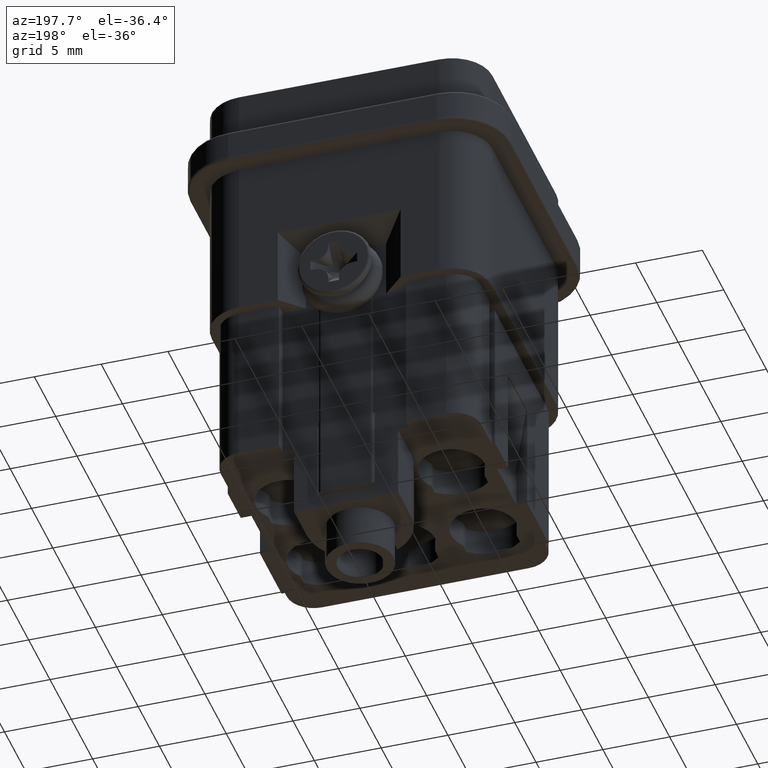
[diagram: clean part render]
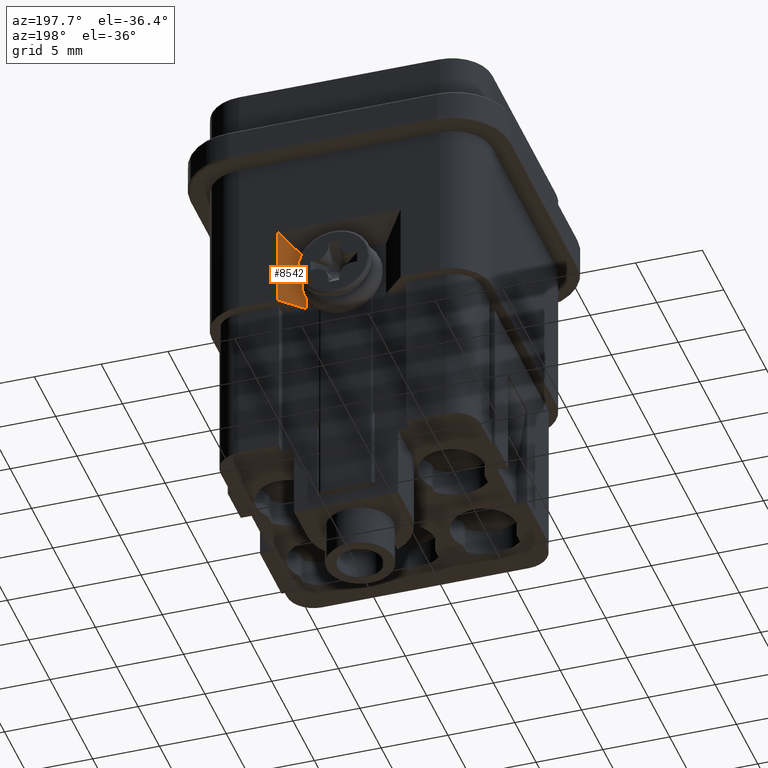
[diagram: same view with one face highlighted and labeled with its STEP entity id]
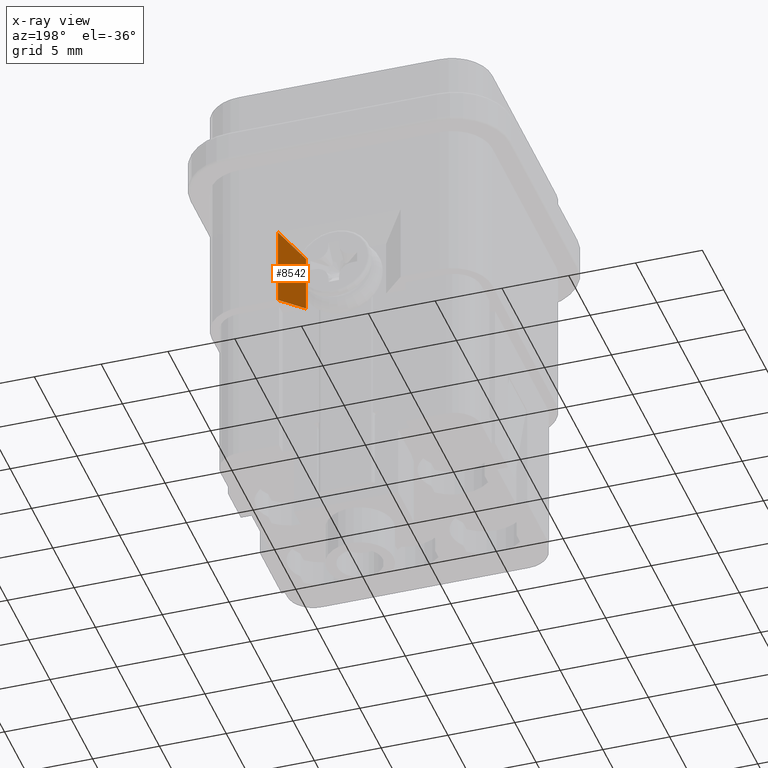
[diagram: x-ray of the same camera — body ghosted, the highlighted face saturated]
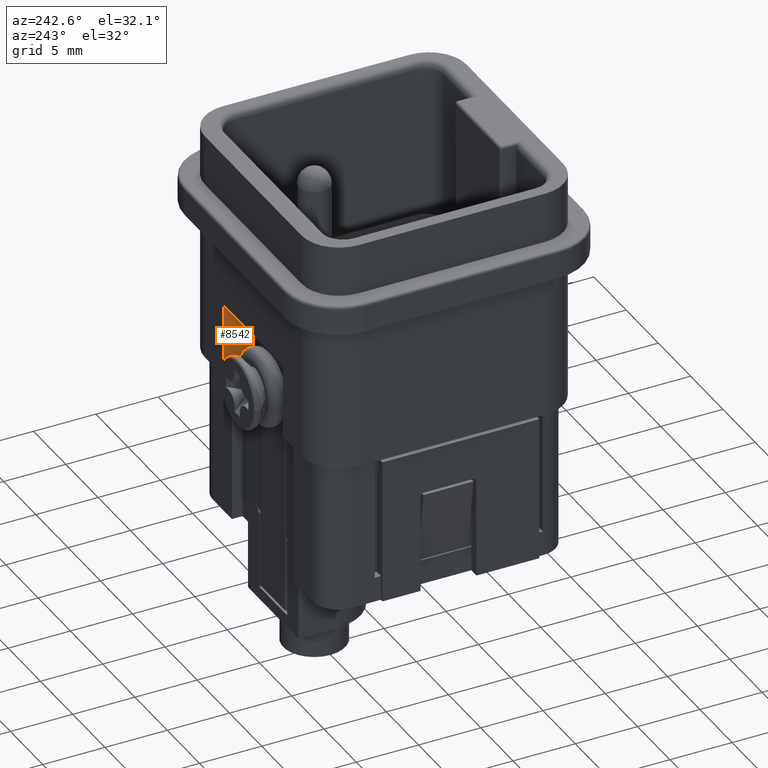
[diagram: same view with one face highlighted and labeled with its STEP entity id]
A machine part, auxiliary view. The second image highlights one B-rep face of the part: STEP entity #8542.
The next image is the same camera in x-ray: the body ghosted, the highlighted face saturated — about 0% of this face is hidden behind the body in this view.
A second angle (auxiliary view) of the same face is appended — the face is thin or edge-on in the first view.
In plain terms, the highlighted planar face has unit normal (0.7071, -0.7071, 0).
Its self-contained STEP definition (entity closure, byte-faithful):
#127=DIRECTION('',(-7.071067811865E-1,-7.071067811865E-1,0.E0));
#128=VECTOR('',#127,2.262741699797E0);
#129=CARTESIAN_POINT('',(4.6E0,1.05E1,1.02E1));
#130=LINE('',#129,#128);
#3367=DIRECTION('',(0.E0,0.E0,1.E0));
#3368=VECTOR('',#3367,6.E0);
#3369=CARTESIAN_POINT('',(4.6E0,1.05E1,1.02E1));
#3370=LINE('',#3369,#3368);
#3371=DIRECTION('',(-5.773502691896E-1,-5.773502691896E-1,-5.773502691896E-1));
#3372=VECTOR('',#3371,2.771281292110E0);
#3373=CARTESIAN_POINT('',(4.6E0,1.05E1,1.62E1));
#3374=LINE('',#3373,#3372);
#3375=DIRECTION('',(0.E0,0.E0,-1.E0));
#3376=VECTOR('',#3375,4.4E0);
#3377=CARTESIAN_POINT('',(3.E0,8.9E0,1.46E1));
#3378=LINE('',#3377,#3376);
#3391=CARTESIAN_POINT('',(3.E0,8.9E0,1.02E1));
#3393=VERTEX_POINT('',#3391);
#3395=CARTESIAN_POINT('',(3.E0,8.9E0,1.46E1));
#3396=VERTEX_POINT('',#3395);
#3427=CARTESIAN_POINT('',(4.6E0,1.05E1,1.02E1));
#3428=VERTEX_POINT('',#3427);
#3457=CARTESIAN_POINT('',(4.6E0,1.05E1,1.62E1));
#3458=VERTEX_POINT('',#3457);
#8530=CARTESIAN_POINT('',(3.E0,8.9E0,1.4E1));
#8531=DIRECTION('',(7.071067811865E-1,-7.071067811865E-1,0.E0));
#8532=DIRECTION('',(-7.071067811865E-1,-7.071067811865E-1,0.E0));
#8533=AXIS2_PLACEMENT_3D('',#8530,#8531,#8532);
#8534=PLANE('',#8533);
#8535=ORIENTED_EDGE('',*,*,#4401,.F.);
#8536=ORIENTED_EDGE('',*,*,#4462,.T.);
#8538=ORIENTED_EDGE('',*,*,#8537,.T.);
#8539=ORIENTED_EDGE('',*,*,#5899,.T.);
#8540=EDGE_LOOP('',(#8535,#8536,#8538,#8539));
#8541=FACE_OUTER_BOUND('',#8540,.F.);
#8542=ADVANCED_FACE('',(#8541),#8534,.F.);
#4401=EDGE_CURVE('',#3428,#3393,#130,.T.);
#4462=EDGE_CURVE('',#3428,#3458,#3370,.T.);
#5899=EDGE_CURVE('',#3396,#3393,#3378,.T.);
#8537=EDGE_CURVE('',#3458,#3396,#3374,.T.);